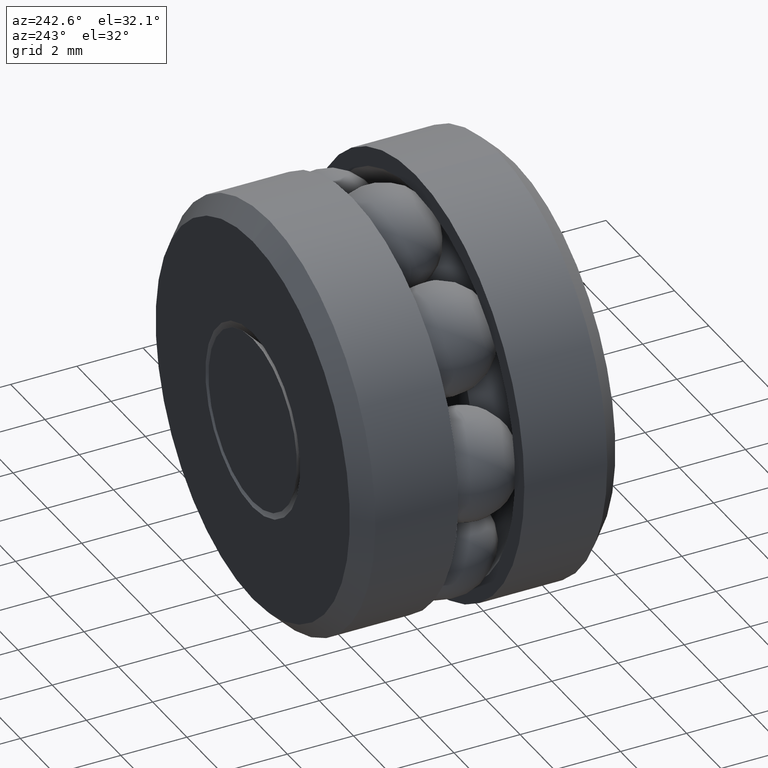
[diagram: clean part render]
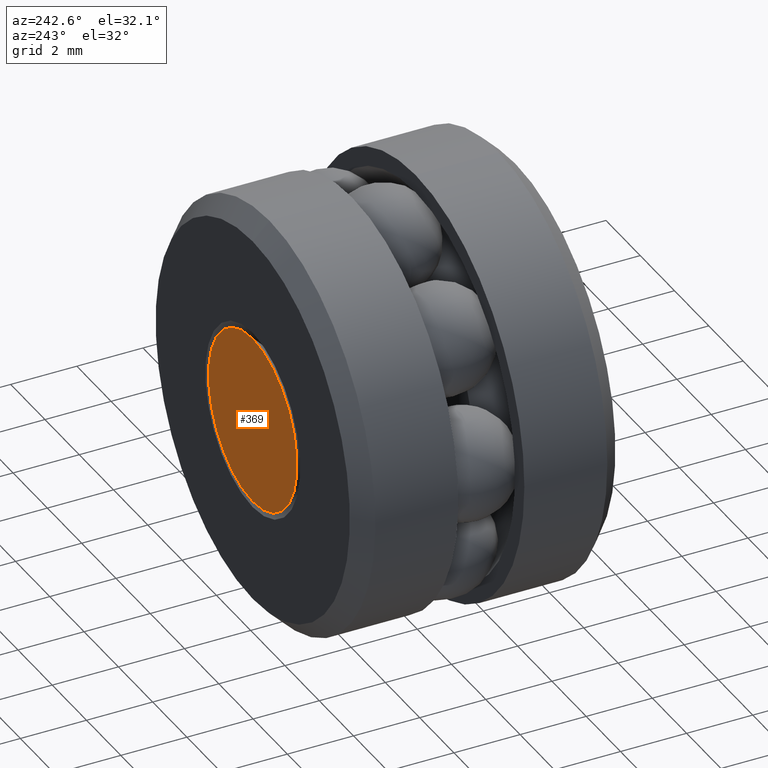
[diagram: same view with one face highlighted and labeled with its STEP entity id]
A machine part, auxiliary view. The second image highlights one B-rep face of the part: STEP entity #369.
In plain terms, the highlighted planar face has unit normal (-0, 1, 0).
Its self-contained STEP definition (entity closure, byte-faithful):
#27 = DIRECTION ( 'NONE',  ( 0.0000000000000000000, 0.0000000000000000000, 1.000000000000000000 ) ) ;
#75 = ORIENTED_EDGE ( 'NONE', *, *, #406, .T. ) ;
#119 = DIRECTION ( 'NONE',  ( -0.0000000000000000000, 1.000000000000000000, 0.0000000000000000000 ) ) ;
#127 = CARTESIAN_POINT ( 'NONE',  ( 0.0000000000000000000, 0.3125000000000000000, 0.0000000000000000000 ) ) ;
#284 = CARTESIAN_POINT ( 'NONE',  ( 0.0000000000000000000, 0.3125000000000000000, 0.0000000000000000000 ) ) ;
#369 = ADVANCED_FACE ( 'NONE', ( #502 ), #424, .T. ) ;
#406 = EDGE_CURVE ( 'NONE', #455, #455, #491, .T. ) ;
#424 = PLANE ( 'NONE',  #439 ) ;
#439 = AXIS2_PLACEMENT_3D ( 'NONE', #127, #119, #524 ) ;
#455 = VERTEX_POINT ( 'NONE', #486 ) ;
#462 = EDGE_LOOP ( 'NONE', ( #75 ) ) ;
#479 = AXIS2_PLACEMENT_3D ( 'NONE', #284, #530, #27 ) ;
#486 = CARTESIAN_POINT ( 'NONE',  ( 0.0000000000000000000, 0.3125000000000000000, 0.1015624999999996300 ) ) ;
#491 = CIRCLE ( 'NONE', #479, 0.1015624999999996300 ) ;
#502 = FACE_OUTER_BOUND ( 'NONE', #462, .T. ) ;
#524 = DIRECTION ( 'NONE',  ( 0.0000000000000000000, 0.0000000000000000000, 1.000000000000000000 ) ) ;
#530 = DIRECTION ( 'NONE',  ( -0.0000000000000000000, 1.000000000000000000, -0.0000000000000000000 ) ) ;